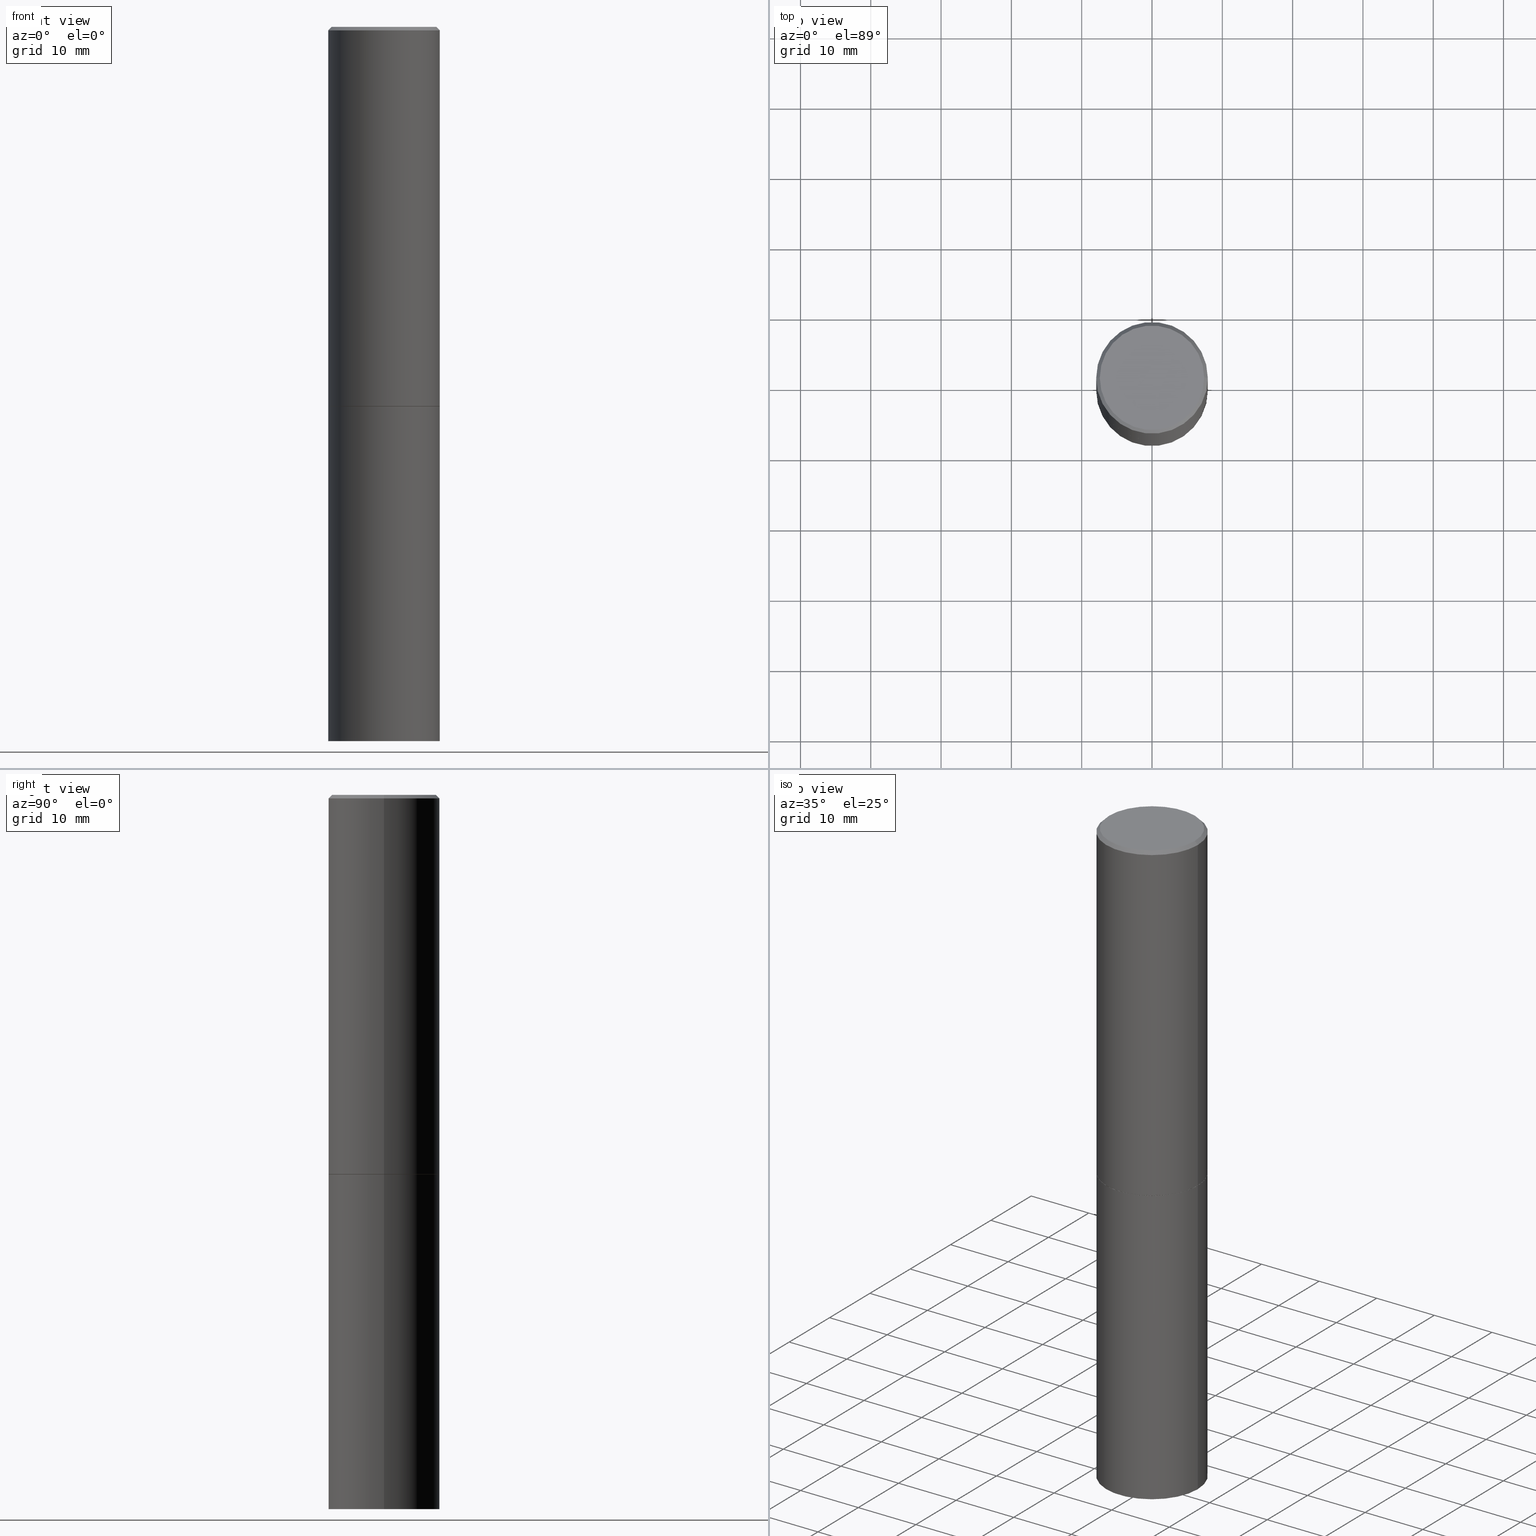
[diagram: canonical four-view strip — front | top / right | iso, engineering-drawing reading convention]
A machine part, canonical four-view strip (front | top / right | iso — engineering-drawing reading convention). The complete STEP part file that produces these views, byte-faithful:
ISO-10303-21;
HEADER;
FILE_DESCRIPTION (( 'STEP AP203' ),
    '1' );
FILE_NAME ('37563.STEP',
    '2024-02-27T22:13:36',
    ( '' ),
    ( '' ),
    'SwSTEP 2.0',
    'SolidWorks 2023',
    '' );
FILE_SCHEMA (( 'CONFIG_CONTROL_DESIGN' ));
ENDSEC;

DATA;
#1 = SHAPE_DEFINITION_REPRESENTATION ( #155, #196 ) ;
#2 = DIRECTION ( 'NONE',  ( -2.445468806185136597E-29, 3.491481338843145583E-15, 1.000000000000000000 ) ) ;
#3 = CARTESIAN_POINT ( 'NONE',  ( -0.3125000000000000000, 2.220446049250313081E-15, -1.537167215704658232E-29 ) ) ;
#4 = EDGE_CURVE ( 'NONE', #140, #62, #200, .T. ) ;
#5 = EDGE_CURVE ( 'NONE', #263, #297, #322, .T. ) ;
#6 = ORIENTED_EDGE ( 'NONE', *, *, #281, .T. ) ;
#7 =( NAMED_UNIT ( * ) PLANE_ANGLE_UNIT ( ) SI_UNIT ( $, .RADIAN. ) );
#8 = ORIENTED_EDGE ( 'NONE', *, *, #171, .F. ) ;
#9 = APPROVAL_DATE_TIME ( #242, #126 ) ;
#10 = AXIS2_PLACEMENT_3D ( 'NONE', #300, #301, #190 ) ;
#11 = AXIS2_PLACEMENT_3D ( 'NONE', #26, #224, #254 ) ;
#12 = ORIENTED_EDGE ( 'NONE', *, *, #4, .F. ) ;
#13 = ORIENTED_EDGE ( 'NONE', *, *, #22, .F. ) ;
#14 = VERTEX_POINT ( 'NONE', #268 ) ;
#15 = APPROVAL_STATUS ( 'not_yet_approved' ) ;
#16 = AXIS2_PLACEMENT_3D ( 'NONE', #257, #309, #91 ) ;
#17 = DIRECTION ( 'NONE',  ( -2.445468806185136597E-29, 3.491481338843145583E-15, 1.000000000000000000 ) ) ;
#18 = PLANE ( 'NONE',  #298 ) ;
#19 = ADVANCED_FACE ( 'NONE', ( #238 ), #105, .T. ) ;
#20 = CC_DESIGN_SECURITY_CLASSIFICATION ( #78, ( #82 ) ) ;
#21 = CARTESIAN_POINT ( 'NONE',  ( 0.3114999999999999991, -9.594590719140955956E-15, -2.124999999999999556 ) ) ;
#22 = EDGE_CURVE ( 'NONE', #116, #140, #72, .T. ) ;
#23 = LINE ( 'NONE', #131, #129 ) ;
#24 = DIRECTION ( 'NONE',  ( 1.000000000000000000, -6.982962677686266711E-15, 4.876176775795936353E-29 ) ) ;
#25 = FACE_OUTER_BOUND ( 'NONE', #118, .T. ) ;
#26 = CARTESIAN_POINT ( 'NONE',  ( 5.196621213143414147E-29, -7.419397845041682046E-15, -2.124999999999999556 ) ) ;
#27 = DIRECTION ( 'NONE',  ( -1.000000000000000000, 6.982962677686265922E-15, -4.876176775795935793E-29 ) ) ;
#28 = CC_DESIGN_PERSON_AND_ORGANIZATION_ASSIGNMENT ( #232, #178, ( #182 ) ) ;
#29 = DIRECTION ( 'NONE',  ( -2.445468806185136597E-29, 3.491481338843145583E-15, 1.000000000000000000 ) ) ;
#30 = DIRECTION ( 'NONE',  ( -2.445468806185136597E-29, 3.491481338843145583E-15, 1.000000000000000000 ) ) ;
#31 = CARTESIAN_POINT ( 'NONE',  ( 5.194175744337229665E-29, -7.415906363702840616E-15, -2.123999999999999666 ) ) ;
#32 = DIRECTION ( 'NONE',  ( -2.445468806185136877E-29, 3.491481338843145188E-15, 1.000000000000000000 ) ) ;
#33 = AXIS2_PLACEMENT_3D ( 'NONE', #239, #215, #147 ) ;
#34 = PERSON_AND_ORGANIZATION_ROLE ( 'creator' ) ;
#35 = ORIENTED_EDGE ( 'NONE', *, *, #56, .T. ) ;
#36 = DIRECTION ( 'NONE',  ( 1.000000000000000000, 0.000000000000000000, 0.000000000000000000 ) ) ;
#37 = ORIENTED_EDGE ( 'NONE', *, *, #237, .F. ) ;
#38 = APPROVAL_ROLE ( '' ) ;
#39 = DATE_AND_TIME ( #295, #184 ) ;
#40 = ORIENTED_EDGE ( 'NONE', *, *, #225, .T. ) ;
#41 = DIRECTION ( 'NONE',  ( -2.445468806185136597E-29, 3.491481338843145583E-15, 1.000000000000000000 ) ) ;
#42 = AXIS2_PLACEMENT_3D ( 'NONE', #166, #2, #340 ) ;
#43 = CARTESIAN_POINT ( 'NONE',  ( -0.3125000000000000000, -8.472215550956819896E-15, -4.000000000000000000 ) ) ;
#44 = DIRECTION ( 'NONE',  ( 1.000000000000000000, -6.982962677686265133E-15, 0.000000000000000000 ) ) ;
#45 = DIRECTION ( 'NONE',  ( -0.7071067811865465735, 2.468850131082246805E-15, -0.7071067811865484609 ) ) ;
#46 = AXIS2_PLACEMENT_3D ( 'NONE', #47, #213, #351 ) ;
#47 = CARTESIAN_POINT ( 'NONE',  ( 9.781875224740546387E-29, -1.396592535537258233E-14, -4.000000000000000000 ) ) ;
#48 = FACE_OUTER_BOUND ( 'NONE', #204, .T. ) ;
#49 = FACE_OUTER_BOUND ( 'NONE', #143, .T. ) ;
#50 = CC_DESIGN_PERSON_AND_ORGANIZATION_ASSIGNMENT ( #317, #315, ( #244 ) ) ;
#51 = DIRECTION ( 'NONE',  ( 2.438088387897960049E-29, -3.491481338843145188E-15, -1.000000000000000000 ) ) ;
#52 = CONICAL_SURFACE ( 'NONE', #42, 0.3114999999999999991, 0.7853981633974141952 ) ;
#53 = CARTESIAN_POINT ( 'NONE',  ( 2.042516583223231356E-15, 0.2924999999999997602, -1.019124035366569212E-15 ) ) ;
#54 = DIRECTION ( 'NONE',  ( 1.000000000000000000, -6.982962677686265133E-15, 0.000000000000000000 ) ) ;
#55 = DIRECTION ( 'NONE',  ( -2.445468806185136597E-29, 3.491481338843145583E-15, 1.000000000000000000 ) ) ;
#56 = EDGE_CURVE ( 'NONE', #347, #297, #217, .T. ) ;
#57 = CARTESIAN_POINT ( 'NONE',  ( -0.2924999999999997602, 2.077431396611662611E-15, 4.268512490086005323E-18 ) ) ;
#58 = LINE ( 'NONE', #191, #115 ) ;
#59 = APPROVAL_ROLE ( '' ) ;
#60 = AXIS2_PLACEMENT_3D ( 'NONE', #342, #306, #157 ) ;
#61 = APPROVAL_STATUS ( 'not_yet_approved' ) ;
#62 = VERTEX_POINT ( 'NONE', #353 ) ;
#63 = COORDINATED_UNIVERSAL_TIME_OFFSET ( 5, 0, .BEHIND. ) ;
#64 = EDGE_LOOP ( 'NONE', ( #121, #255 ) ) ;
#65 = DATE_TIME_ROLE ( 'classification_date' ) ;
#66 = ORIENTED_EDGE ( 'NONE', *, *, #305, .T. ) ;
#67 = VERTEX_POINT ( 'NONE', #43 ) ;
#68 = VERTEX_POINT ( 'NONE', #127 ) ;
#69 = CARTESIAN_POINT ( 'NONE',  ( -0.3124999999999998335, 2.112346210000093866E-15, -0.02000000000000007674 ) ) ;
#70 = VECTOR ( 'NONE', #274, 39.37007874015748854 ) ;
#71 = LINE ( 'NONE', #150, #284 ) ;
#72 = LINE ( 'NONE', #331, #302 ) ;
#73 = FACE_OUTER_BOUND ( 'NONE', #228, .T. ) ;
#74 =( CONVERSION_BASED_UNIT ( 'INCH', #334 ) LENGTH_UNIT ( ) NAMED_UNIT ( #159 ) );
#75 = DIRECTION ( 'NONE',  ( 1.000000000000000000, -6.982962677686265133E-15, 0.000000000000000000 ) ) ;
#76 = AXIS2_PLACEMENT_3D ( 'NONE', #272, #360, #103 ) ;
#77 = ADVANCED_FACE ( 'NONE', ( #73 ), #264, .T. ) ;
#78 = SECURITY_CLASSIFICATION ( '', '', #354 ) ;
#79 = DIRECTION ( 'NONE',  ( 2.438088387897960049E-29, -3.491481338843145188E-15, -1.000000000000000000 ) ) ;
#80 = EDGE_CURVE ( 'NONE', #116, #321, #110, .T. ) ;
#81 = CARTESIAN_POINT ( 'NONE',  ( -0.3114999999999999991, -5.200758768800747571E-15, -2.124999999999999556 ) ) ;
#82 = PRODUCT_DEFINITION_FORMATION_WITH_SPECIFIED_SOURCE ( 'ANY', '', #244, .NOT_KNOWN. ) ;
#83 = ORIENTED_EDGE ( 'NONE', *, *, #307, .T. ) ;
#84 = MANIFOLD_SOLID_BREP ( 'Body-Move/Copy2[1]', #271 ) ;
#85 = ADVANCED_FACE ( 'NONE', ( #187 ), #151, .T. ) ;
#86 = APPLICATION_PROTOCOL_DEFINITION ( 'international standard', 'config_control_design', 1994, #133 ) ;
#87 = ORIENTED_EDGE ( 'NONE', *, *, #22, .T. ) ;
#88 = PERSON ( 'UNSPECIFIED', 'UNSPECIFIED', 'UNSPECIFIED', ('UNSPECIFIED'), ('UNSPECIFIED'), ('UNSPECIFIED') ) ;
#89 = ORIENTED_EDGE ( 'NONE', *, *, #104, .T. ) ;
#90 = DATE_AND_TIME ( #119, #234 ) ;
#91 = DIRECTION ( 'NONE',  ( -1.000000000000000000, 6.982962677686265922E-15, -4.876176775795935793E-29 ) ) ;
#92 = ORIENTED_EDGE ( 'NONE', *, *, #358, .F. ) ;
#93 = AXIS2_PLACEMENT_3D ( 'NONE', #359, #97, #99 ) ;
#94 = AXIS2_PLACEMENT_3D ( 'NONE', #53, #79, #108 ) ;
#95 = ORIENTED_EDGE ( 'NONE', *, *, #358, .T. ) ;
#96 = MANIFOLD_SOLID_BREP ( 'Body-Move/Copy2[2]', #160 ) ;
#97 = DIRECTION ( 'NONE',  ( -2.445468806185136597E-29, 3.491481338843145583E-15, 1.000000000000000000 ) ) ;
#98 = PERSON_AND_ORGANIZATION ( #88, #194 ) ;
#99 = DIRECTION ( 'NONE',  ( 1.000000000000000000, -6.982962677686269077E-15, 0.000000000000000000 ) ) ;
#100 = APPROVAL ( #61, 'UNSPECIFIED' ) ;
#101 = CARTESIAN_POINT ( 'NONE',  ( -0.3114999999999999991, -5.206057223148969973E-15, -2.124999999999999556 ) ) ;
#102 = CALENDAR_DATE ( 2024, 27, 2 ) ;
#103 = DIRECTION ( 'NONE',  ( 1.000000000000000000, -6.982962677686266711E-15, 4.876176775795935232E-29 ) ) ;
#104 = EDGE_CURVE ( 'NONE', #293, #68, #291, .T. ) ;
#105 = CYLINDRICAL_SURFACE ( 'NONE', #211, 0.3125000000000000000 ) ;
#106 = ADVANCED_FACE ( 'NONE', ( #326 ), #189, .T. ) ;
#107 = AXIS2_PLACEMENT_3D ( 'NONE', #222, #55, #338 ) ;
#108 = DIRECTION ( 'NONE',  ( -1.000000000000000000, 6.982962677686265922E-15, -4.876176775795935793E-29 ) ) ;
#109 = FACE_OUTER_BOUND ( 'NONE', #114, .T. ) ;
#110 = CIRCLE ( 'NONE', #93, 0.3114999999999999991 ) ;
#111 = CC_DESIGN_APPROVAL ( #126, ( #78 ) ) ;
#112 = PERSON_AND_ORGANIZATION ( #88, #194 ) ;
#113 = PLANE ( 'NONE',  #310 ) ;
#114 = EDGE_LOOP ( 'NONE', ( #346, #95, #316, #260 ) ) ;
#115 = VECTOR ( 'NONE', #32, 39.37007874015748143 ) ;
#116 = VERTEX_POINT ( 'NONE', #21 ) ;
#117 =( NAMED_UNIT ( * ) SI_UNIT ( $, .STERADIAN. ) SOLID_ANGLE_UNIT ( ) );
#118 = EDGE_LOOP ( 'NONE', ( #325, #174, #179, #233 ) ) ;
#119 = CALENDAR_DATE ( 2024, 27, 2 ) ;
#120 = ORIENTED_EDGE ( 'NONE', *, *, #171, .T. ) ;
#121 = ORIENTED_EDGE ( 'NONE', *, *, #276, .T. ) ;
#122 = AXIS2_PLACEMENT_3D ( 'NONE', #313, #30, #75 ) ;
#123 = LINE ( 'NONE', #101, #70 ) ;
#124 = CALENDAR_DATE ( 2024, 27, 2 ) ;
#125 = DIRECTION ( 'NONE',  ( -2.445468806185136597E-29, 3.491481338843145583E-15, 1.000000000000000000 ) ) ;
#126 = APPROVAL ( #15, 'UNSPECIFIED' ) ;
#127 = CARTESIAN_POINT ( 'NONE',  ( 0.3125000000000000000, -9.601573681818640393E-15, -2.124999999999999556 ) ) ;
#128 = AXIS2_PLACEMENT_3D ( 'NONE', #183, #41, #44 ) ;
#129 = VECTOR ( 'NONE', #209, 39.37007874015748143 ) ;
#130 = DIRECTION ( 'NONE',  ( 1.000000000000000000, -6.982962677686269077E-15, 0.000000000000000000 ) ) ;
#131 = CARTESIAN_POINT ( 'NONE',  ( 0.3125000000000000000, -2.182175836776958347E-15, 1.523805242436230075E-29 ) ) ;
#132 = DIRECTION ( 'NONE',  ( 2.445468806185136597E-29, -3.491481338843145583E-15, -1.000000000000000000 ) ) ;
#133 = APPLICATION_CONTEXT ( 'configuration controlled 3d designs of mechanical parts and assemblies' ) ;
#134 = AXIS2_PLACEMENT_3D ( 'NONE', #149, #17, #329 ) ;
#135 = CYLINDRICAL_SURFACE ( 'NONE', #142, 0.3125000000000000000 ) ;
#136 = CARTESIAN_POINT ( 'NONE',  ( -0.3124999999999998890, 2.220446049250312292E-15, -1.537167215704657391E-29 ) ) ;
#137 = CIRCLE ( 'NONE', #46, 0.3125000000000000000 ) ;
#138 = VECTOR ( 'NONE', #308, 39.37007874015748143 ) ;
#139 = PERSON_AND_ORGANIZATION ( #88, #194 ) ;
#140 = VERTEX_POINT ( 'NONE', #188 ) ;
#141 = ORIENTED_EDGE ( 'NONE', *, *, #307, .F. ) ;
#142 = AXIS2_PLACEMENT_3D ( 'NONE', #156, #29, #24 ) ;
#143 = EDGE_LOOP ( 'NONE', ( #318, #8 ) ) ;
#144 = COORDINATED_UNIVERSAL_TIME_OFFSET ( 5, 0, .BEHIND. ) ;
#145 = APPROVAL_DATE_TIME ( #39, #208 ) ;
#146 = EDGE_LOOP ( 'NONE', ( #181, #141 ) ) ;
#147 = DIRECTION ( 'NONE',  ( -1.000000000000000000, 6.982962677686265133E-15, 0.000000000000000000 ) ) ;
#148 = EDGE_CURVE ( 'NONE', #14, #67, #137, .T. ) ;
#149 = CARTESIAN_POINT ( 'NONE',  ( 9.781875224740546387E-29, -1.396592535537258233E-14, -4.000000000000000000 ) ) ;
#150 = CARTESIAN_POINT ( 'NONE',  ( 0.3124999999999998335, -2.213735251080465334E-15, -0.02000000000000007674 ) ) ;
#151 = CYLINDRICAL_SURFACE ( 'NONE', #76, 0.3124999999999998890 ) ;
#152 = AXIS2_PLACEMENT_3D ( 'NONE', #241, #236, #130 ) ;
#153 = CIRCLE ( 'NONE', #205, 0.2924999999999997602 ) ;
#154 = CARTESIAN_POINT ( 'NONE',  ( 0.2924999999999997602, -2.110215457714318353E-15, 4.268512490114932791E-18 ) ) ;
#155 = PRODUCT_DEFINITION_SHAPE ( 'NONE', 'NONE',  #182 ) ;
#156 = CARTESIAN_POINT ( 'NONE',  ( 0.000000000000000000, 0.000000000000000000, 0.000000000000000000 ) ) ;
#157 = DIRECTION ( 'NONE',  ( 1.000000000000000000, -6.982962677686266711E-15, 4.876067333457693400E-29 ) ) ;
#158 = DIRECTION ( 'NONE',  ( 1.000000000000000000, -6.982962677686266711E-15, 4.876067333457693400E-29 ) ) ;
#159 = DIMENSIONAL_EXPONENTS ( 1.000000000000000000, 0.000000000000000000, 0.000000000000000000, 0.000000000000000000, 0.000000000000000000, 0.000000000000000000, 0.000000000000000000 ) ;
#160 = CLOSED_SHELL ( 'NONE', ( #77, #85, #287, #106, #220, #320, #199, #250 ) ) ;
#161 = CIRCLE ( 'NONE', #11, 0.3114999999999999991 ) ;
#162 = DIRECTION ( 'NONE',  ( 1.000000000000000000, -6.982962677686265133E-15, 0.000000000000000000 ) ) ;
#163 = LINE ( 'NONE', #3, #138 ) ;
#164 = CYLINDRICAL_SURFACE ( 'NONE', #107, 0.3124999999999998890 ) ;
#165 = ORIENTED_EDGE ( 'NONE', *, *, #80, .T. ) ;
#166 = CARTESIAN_POINT ( 'NONE',  ( 5.196621213143414147E-29, -7.419397845041682046E-15, -2.124999999999999556 ) ) ;
#167 = CARTESIAN_POINT ( 'NONE',  ( -1.043851414335219820E-46, 1.490343170380447200E-32, 4.268512490100411279E-18 ) ) ;
#168 = APPROVAL_DATE_TIME ( #90, #100 ) ;
#169 = CONICAL_SURFACE ( 'NONE', #364, 0.3124999999999998335, 0.7853981633974469467 ) ;
#170 = COORDINATED_UNIVERSAL_TIME_OFFSET ( 5, 0, .BEHIND. ) ;
#171 = EDGE_CURVE ( 'NONE', #67, #14, #223, .T. ) ;
#172 = ORIENTED_EDGE ( 'NONE', *, *, #197, .F. ) ;
#173 = APPLICATION_PROTOCOL_DEFINITION ( 'international standard', 'config_control_design', 1994, #275 ) ;
#174 = ORIENTED_EDGE ( 'NONE', *, *, #197, .T. ) ;
#175 = LOCAL_TIME ( 17, 13, 36.00000000000000000, #144 ) ;
#176 = VERTEX_POINT ( 'NONE', #154 ) ;
#177 = EDGE_CURVE ( 'NONE', #321, #62, #123, .T. ) ;
#178 = PERSON_AND_ORGANIZATION_ROLE ( 'creator' ) ;
#179 = ORIENTED_EDGE ( 'NONE', *, *, #5, .T. ) ;
#180 = PERSON_AND_ORGANIZATION_ROLE ( 'design_supplier' ) ;
#181 = ORIENTED_EDGE ( 'NONE', *, *, #80, .F. ) ;
#182 = PRODUCT_DEFINITION ( 'UNKNOWN', '', #82, #336 ) ;
#183 = CARTESIAN_POINT ( 'NONE',  ( 5.196621213143414147E-29, -7.419397845041682046E-15, -2.124999999999999556 ) ) ;
#184 = LOCAL_TIME ( 17, 13, 36.00000000000000000, #170 ) ;
#185 = DIRECTION ( 'NONE',  ( 0.7071067811865465735, -7.319954787623252890E-15, -0.7071067811865484609 ) ) ;
#186 = EDGE_CURVE ( 'NONE', #14, #68, #23, .T. ) ;
#187 = FACE_OUTER_BOUND ( 'NONE', #262, .T. ) ;
#188 = CARTESIAN_POINT ( 'NONE',  ( 0.3125000000000000000, -9.598082200479797386E-15, -2.123999999999999666 ) ) ;
#189 = CONICAL_SURFACE ( 'NONE', #33, 0.3124999999999998335, 0.7853981633974469467 ) ;
#190 = DIRECTION ( 'NONE',  ( 1.000000000000000000, -6.982962677686265133E-15, 0.000000000000000000 ) ) ;
#191 = CARTESIAN_POINT ( 'NONE',  ( 0.3124999999999998890, -2.182175836776957558E-15, 1.523805242436229235E-29 ) ) ;
#192 = CC_DESIGN_PERSON_AND_ORGANIZATION_ASSIGNMENT ( #98, #357, ( #78 ) ) ;
#193 = DIRECTION ( 'NONE',  ( 1.000000000000000000, -6.982962677686265922E-15, 4.876176775795935793E-29 ) ) ;
#194 = ORGANIZATION ( 'UNSPECIFIED', 'UNSPECIFIED', '' ) ;
#195 = CARTESIAN_POINT ( 'NONE',  ( 0.3124999999999998335, -2.213735251080465334E-15, -0.02000000000000007674 ) ) ;
#196 = ADVANCED_BREP_SHAPE_REPRESENTATION ( '37563', ( #84, #96, #304 ), #355 ) ;
#197 = EDGE_CURVE ( 'NONE', #176, #263, #71, .T. ) ;
#198 = DATE_TIME_ROLE ( 'creation_date' ) ;
#199 = ADVANCED_FACE ( 'NONE', ( #269 ), #18, .F. ) ;
#200 = CIRCLE ( 'NONE', #10, 0.3125000000000000000 ) ;
#201 = APPROVAL_PERSON_ORGANIZATION ( #345, #100, #323 ) ;
#202 = ORIENTED_EDGE ( 'NONE', *, *, #104, .F. ) ;
#203 = ORIENTED_EDGE ( 'NONE', *, *, #4, .T. ) ;
#204 = EDGE_LOOP ( 'NONE', ( #231, #120, #349, #202 ) ) ;
#205 = AXIS2_PLACEMENT_3D ( 'NONE', #167, #363, #158 ) ;
#206 = ORIENTED_EDGE ( 'NONE', *, *, #177, .F. ) ;
#207 = EDGE_LOOP ( 'NONE', ( #206, #83, #87, #92 ) ) ;
#208 = APPROVAL ( #285, 'UNSPECIFIED' ) ;
#209 = DIRECTION ( 'NONE',  ( -2.445468806185136877E-29, 3.491481338843145188E-15, 1.000000000000000000 ) ) ;
#210 = COORDINATED_UNIVERSAL_TIME_OFFSET ( 5, 0, .BEHIND. ) ;
#211 = AXIS2_PLACEMENT_3D ( 'NONE', #330, #332, #267 ) ;
#212 = DIRECTION ( 'NONE',  ( 1.000000000000000000, -6.982962677686265133E-15, 0.000000000000000000 ) ) ;
#213 = DIRECTION ( 'NONE',  ( -2.445468806185136597E-29, 3.491481338843145583E-15, 1.000000000000000000 ) ) ;
#214 = DATE_AND_TIME ( #102, #292 ) ;
#215 = DIRECTION ( 'NONE',  ( 2.445468806185136597E-29, -3.491481338843145583E-15, -1.000000000000000000 ) ) ;
#216 = DIRECTION ( 'NONE',  ( -2.445468806185136597E-29, 3.491481338843145583E-15, 1.000000000000000000 ) ) ;
#217 = LINE ( 'NONE', #69, #252 ) ;
#218 = CIRCLE ( 'NONE', #328, 0.3125000000000000000 ) ;
#219 = LINE ( 'NONE', #136, #247 ) ;
#220 = ADVANCED_FACE ( 'NONE', ( #109 ), #164, .T. ) ;
#221 = FACE_OUTER_BOUND ( 'NONE', #207, .T. ) ;
#222 = CARTESIAN_POINT ( 'NONE',  ( 0.000000000000000000, 0.000000000000000000, 0.000000000000000000 ) ) ;
#223 = CIRCLE ( 'NONE', #134, 0.3125000000000000000 ) ;
#224 = DIRECTION ( 'NONE',  ( -2.445468806185136597E-29, 3.491481338843145583E-15, 1.000000000000000000 ) ) ;
#225 = EDGE_CURVE ( 'NONE', #297, #263, #279, .T. ) ;
#226 = MECHANICAL_CONTEXT ( 'NONE', #133, 'mechanical' ) ;
#227 = CC_DESIGN_PERSON_AND_ORGANIZATION_ASSIGNMENT ( #139, #180, ( #82 ) ) ;
#228 = EDGE_LOOP ( 'NONE', ( #165, #303, #12, #13 ) ) ;
#229 = CC_DESIGN_APPROVAL ( #208, ( #82 ) ) ;
#230 = ORIENTED_EDGE ( 'NONE', *, *, #148, .T. ) ;
#231 = ORIENTED_EDGE ( 'NONE', *, *, #251, .F. ) ;
#232 = PERSON_AND_ORGANIZATION ( #88, #194 ) ;
#233 = ORIENTED_EDGE ( 'NONE', *, *, #56, .F. ) ;
#234 = LOCAL_TIME ( 17, 13, 36.00000000000000000, #261 ) ;
#235 = EDGE_LOOP ( 'NONE', ( #172, #290, #35, #40 ) ) ;
#236 = DIRECTION ( 'NONE',  ( -2.445468806185136597E-29, 3.491481338843145583E-15, 1.000000000000000000 ) ) ;
#237 = EDGE_CURVE ( 'NONE', #140, #263, #58, .T. ) ;
#238 = FACE_OUTER_BOUND ( 'NONE', #350, .T. ) ;
#239 = CARTESIAN_POINT ( 'NONE',  ( 4.890937612370292426E-31, -6.982962677686317493E-17, -0.02000000000000007674 ) ) ;
#240 = LOCAL_TIME ( 17, 13, 36.00000000000000000, #63 ) ;
#241 = CARTESIAN_POINT ( 'NONE',  ( 5.196621213143414147E-29, -7.419397845041682046E-15, -2.124999999999999556 ) ) ;
#242 = DATE_AND_TIME ( #124, #175 ) ;
#243 = DIRECTION ( 'NONE',  ( 0.7071067811865232589, -2.468850131082003836E-15, 0.7071067811865715536 ) ) ;
#244 = PRODUCT ( '37563', '37563', '', ( #226 ) ) ;
#245 = AXIS2_PLACEMENT_3D ( 'NONE', #299, #125, #212 ) ;
#246 = EDGE_CURVE ( 'NONE', #176, #347, #153, .T. ) ;
#247 = VECTOR ( 'NONE', #277, 39.37007874015748143 ) ;
#248 = CC_DESIGN_APPROVAL ( #100, ( #182 ) ) ;
#249 = FACE_OUTER_BOUND ( 'NONE', #296, .T. ) ;
#250 = ADVANCED_FACE ( 'NONE', ( #283 ), #337, .F. ) ;
#251 = EDGE_CURVE ( 'NONE', #67, #293, #163, .T. ) ;
#252 = VECTOR ( 'NONE', #45, 39.37007874015748143 ) ;
#253 = CIRCLE ( 'NONE', #60, 0.2924999999999997602 ) ;
#254 = DIRECTION ( 'NONE',  ( 1.000000000000000000, -6.982962677686269077E-15, 0.000000000000000000 ) ) ;
#255 = ORIENTED_EDGE ( 'NONE', *, *, #246, .T. ) ;
#256 = ORIENTED_EDGE ( 'NONE', *, *, #251, .T. ) ;
#257 = CARTESIAN_POINT ( 'NONE',  ( 2.182175836777010017E-15, 0.3124999999999925615, -2.125000000000000888 ) ) ;
#258 = CC_DESIGN_PERSON_AND_ORGANIZATION_ASSIGNMENT ( #112, #34, ( #82 ) ) ;
#259 = CIRCLE ( 'NONE', #266, 0.3125000000000000000 ) ;
#260 = ORIENTED_EDGE ( 'NONE', *, *, #225, .F. ) ;
#261 = COORDINATED_UNIVERSAL_TIME_OFFSET ( 5, 0, .BEHIND. ) ;
#262 = EDGE_LOOP ( 'NONE', ( #203, #6, #288, #37 ) ) ;
#263 = VERTEX_POINT ( 'NONE', #195 ) ;
#264 = CONICAL_SURFACE ( 'NONE', #152, 0.3114999999999999991, 0.7853981633974141952 ) ;
#265 = ADVANCED_FACE ( 'NONE', ( #49 ), #113, .T. ) ;
#266 = AXIS2_PLACEMENT_3D ( 'NONE', #31, #216, #162 ) ;
#267 = DIRECTION ( 'NONE',  ( 1.000000000000000000, -6.982962677686266711E-15, 4.876176775795936353E-29 ) ) ;
#268 = CARTESIAN_POINT ( 'NONE',  ( 0.3125000000000000000, -1.614810119214954068E-14, -4.000000000000000000 ) ) ;
#269 = FACE_OUTER_BOUND ( 'NONE', #146, .T. ) ;
#270 = PERSON_AND_ORGANIZATION ( #88, #194 ) ;
#271 = CLOSED_SHELL ( 'NONE', ( #19, #265, #294, #365 ) ) ;
#272 = CARTESIAN_POINT ( 'NONE',  ( 0.000000000000000000, 0.000000000000000000, 0.000000000000000000 ) ) ;
#273 = APPROVAL_PERSON_ORGANIZATION ( #348, #208, #59 ) ;
#274 = DIRECTION ( 'NONE',  ( -0.7071067811865232589, 7.493145998870265808E-15, 0.7071067811865715536 ) ) ;
#275 = APPLICATION_CONTEXT ( 'configuration controlled 3d designs of mechanical parts and assemblies' ) ;
#276 = EDGE_CURVE ( 'NONE', #347, #176, #253, .T. ) ;
#277 = DIRECTION ( 'NONE',  ( -2.445468806185136877E-29, 3.491481338843145188E-15, 1.000000000000000000 ) ) ;
#278 = CARTESIAN_POINT ( 'NONE',  ( 4.890937612370292426E-31, -6.982962677686317493E-17, -0.02000000000000007674 ) ) ;
#279 = CIRCLE ( 'NONE', #122, 0.3124999999999998335 ) ;
#280 = CARTESIAN_POINT ( 'NONE',  ( -0.3125000000000000000, -8.472215550956819896E-15, -2.124999999999999556 ) ) ;
#281 = EDGE_CURVE ( 'NONE', #62, #297, #219, .T. ) ;
#282 = PRODUCT_RELATED_PRODUCT_CATEGORY ( 'detail', '', ( #244 ) ) ;
#283 = FACE_OUTER_BOUND ( 'NONE', #64, .T. ) ;
#284 = VECTOR ( 'NONE', #185, 39.37007874015748143 ) ;
#285 = APPROVAL_STATUS ( 'not_yet_approved' ) ;
#286 = CARTESIAN_POINT ( 'NONE',  ( 5.196621213143414147E-29, -7.419397845041682046E-15, -2.124999999999999556 ) ) ;
#287 = ADVANCED_FACE ( 'NONE', ( #25 ), #169, .T. ) ;
#288 = ORIENTED_EDGE ( 'NONE', *, *, #5, .F. ) ;
#289 = DATE_AND_TIME ( #343, #240 ) ;
#290 = ORIENTED_EDGE ( 'NONE', *, *, #276, .F. ) ;
#291 = CIRCLE ( 'NONE', #128, 0.3125000000000000000 ) ;
#292 = LOCAL_TIME ( 17, 13, 36.00000000000000000, #210 ) ;
#293 = VERTEX_POINT ( 'NONE', #280 ) ;
#294 = ADVANCED_FACE ( 'NONE', ( #249 ), #366, .F. ) ;
#295 = CALENDAR_DATE ( 2024, 27, 2 ) ;
#296 = EDGE_LOOP ( 'NONE', ( #66, #89 ) ) ;
#297 = VERTEX_POINT ( 'NONE', #352 ) ;
#298 = AXIS2_PLACEMENT_3D ( 'NONE', #356, #341, #193 ) ;
#299 = CARTESIAN_POINT ( 'NONE',  ( 4.890937612370292426E-31, -6.982962677686317493E-17, -0.02000000000000007674 ) ) ;
#300 = CARTESIAN_POINT ( 'NONE',  ( 5.194175744337229665E-29, -7.415906363702840616E-15, -2.123999999999999666 ) ) ;
#301 = DIRECTION ( 'NONE',  ( -2.445468806185136597E-29, 3.491481338843145583E-15, 1.000000000000000000 ) ) ;
#302 = VECTOR ( 'NONE', #243, 39.37007874015748854 ) ;
#303 = ORIENTED_EDGE ( 'NONE', *, *, #177, .T. ) ;
#304 = AXIS2_PLACEMENT_3D ( 'NONE', #319, #314, #36 ) ;
#305 = EDGE_CURVE ( 'NONE', #68, #293, #218, .T. ) ;
#306 = DIRECTION ( 'NONE',  ( -2.445468806185136597E-29, 3.491481338843145583E-15, 1.000000000000000000 ) ) ;
#307 = EDGE_CURVE ( 'NONE', #321, #116, #161, .T. ) ;
#308 = DIRECTION ( 'NONE',  ( -2.445468806185136877E-29, 3.491481338843145188E-15, 1.000000000000000000 ) ) ;
#309 = DIRECTION ( 'NONE',  ( 2.438088387897960049E-29, -3.491481338843145188E-15, -1.000000000000000000 ) ) ;
#310 = AXIS2_PLACEMENT_3D ( 'NONE', #312, #51, #27 ) ;
#311 = DIRECTION ( 'NONE',  ( -2.445468806185136597E-29, 3.491481338843145583E-15, 1.000000000000000000 ) ) ;
#312 = CARTESIAN_POINT ( 'NONE',  ( 2.182175836777055771E-15, 0.3124999999999860667, -4.000000000000000888 ) ) ;
#313 = CARTESIAN_POINT ( 'NONE',  ( 4.890937612370292426E-31, -6.982962677686317493E-17, -0.02000000000000007674 ) ) ;
#314 = DIRECTION ( 'NONE',  ( 0.000000000000000000, 0.000000000000000000, 1.000000000000000000 ) ) ;
#315 = PERSON_AND_ORGANIZATION_ROLE ( 'design_owner' ) ;
#316 = ORIENTED_EDGE ( 'NONE', *, *, #237, .T. ) ;
#317 = PERSON_AND_ORGANIZATION ( #88, #194 ) ;
#318 = ORIENTED_EDGE ( 'NONE', *, *, #148, .F. ) ;
#319 = CARTESIAN_POINT ( 'NONE',  ( 0.000000000000000000, 0.000000000000000000, 0.000000000000000000 ) ) ;
#320 = ADVANCED_FACE ( 'NONE', ( #221 ), #52, .T. ) ;
#321 = VERTEX_POINT ( 'NONE', #81 ) ;
#322 = CIRCLE ( 'NONE', #245, 0.3124999999999998335 ) ;
#323 = APPROVAL_ROLE ( '' ) ;
#324 = ORIENTED_EDGE ( 'NONE', *, *, #305, .F. ) ;
#325 = ORIENTED_EDGE ( 'NONE', *, *, #246, .F. ) ;
#326 = FACE_OUTER_BOUND ( 'NONE', #235, .T. ) ;
#327 = CC_DESIGN_DATE_AND_TIME_ASSIGNMENT ( #289, #198, ( #182 ) ) ;
#328 = AXIS2_PLACEMENT_3D ( 'NONE', #286, #311, #54 ) ;
#329 = DIRECTION ( 'NONE',  ( 1.000000000000000000, -6.982962677686269077E-15, 0.000000000000000000 ) ) ;
#330 = CARTESIAN_POINT ( 'NONE',  ( 0.000000000000000000, 0.000000000000000000, 0.000000000000000000 ) ) ;
#331 = CARTESIAN_POINT ( 'NONE',  ( 0.3114999999999999991, -9.594590719140955956E-15, -2.124999999999999556 ) ) ;
#332 = DIRECTION ( 'NONE',  ( -2.445468806185136597E-29, 3.491481338843145583E-15, 1.000000000000000000 ) ) ;
#333 = CC_DESIGN_DATE_AND_TIME_ASSIGNMENT ( #214, #65, ( #78 ) ) ;
#334 = LENGTH_MEASURE_WITH_UNIT ( LENGTH_MEASURE( 0.02539999999999999897 ), #361 );
#335 = DIRECTION ( 'NONE',  ( -1.000000000000000000, 6.982962677686265133E-15, 0.000000000000000000 ) ) ;
#336 = DESIGN_CONTEXT ( 'detailed design', #275, 'design' ) ;
#337 = PLANE ( 'NONE',  #94 ) ;
#338 = DIRECTION ( 'NONE',  ( 1.000000000000000000, -6.982962677686266711E-15, 4.876176775795935232E-29 ) ) ;
#339 = APPROVAL_PERSON_ORGANIZATION ( #270, #126, #38 ) ;
#340 = DIRECTION ( 'NONE',  ( 1.000000000000000000, -6.982962677686269077E-15, 0.000000000000000000 ) ) ;
#341 = DIRECTION ( 'NONE',  ( -2.438088387897960049E-29, 3.491481338843145188E-15, 1.000000000000000000 ) ) ;
#342 = CARTESIAN_POINT ( 'NONE',  ( -1.043851414335219820E-46, 1.490343170380447200E-32, 4.268512490100411279E-18 ) ) ;
#343 = CALENDAR_DATE ( 2024, 27, 2 ) ;
#344 = ORIENTED_EDGE ( 'NONE', *, *, #186, .F. ) ;
#345 = PERSON_AND_ORGANIZATION ( #88, #194 ) ;
#346 = ORIENTED_EDGE ( 'NONE', *, *, #281, .F. ) ;
#347 = VERTEX_POINT ( 'NONE', #57 ) ;
#348 = PERSON_AND_ORGANIZATION ( #88, #194 ) ;
#349 = ORIENTED_EDGE ( 'NONE', *, *, #186, .T. ) ;
#350 = EDGE_LOOP ( 'NONE', ( #230, #256, #324, #344 ) ) ;
#351 = DIRECTION ( 'NONE',  ( 1.000000000000000000, -6.982962677686269077E-15, 0.000000000000000000 ) ) ;
#352 = CARTESIAN_POINT ( 'NONE',  ( -0.3124999999999998335, 2.112346210000093866E-15, -0.02000000000000007674 ) ) ;
#353 = CARTESIAN_POINT ( 'NONE',  ( -0.3125000000000000000, -1.522421945989535918E-15, -2.123999999999999666 ) ) ;
#354 = SECURITY_CLASSIFICATION_LEVEL ( 'unclassified' ) ;
#355 =( GEOMETRIC_REPRESENTATION_CONTEXT ( 3 ) GLOBAL_UNCERTAINTY_ASSIGNED_CONTEXT ( ( #362 ) ) GLOBAL_UNIT_ASSIGNED_CONTEXT ( ( #74, #7, #117 ) ) REPRESENTATION_CONTEXT ( 'NONE', 'WORKASPACE' ) );
#356 = CARTESIAN_POINT ( 'NONE',  ( 5.196621213143414147E-29, -7.419397845041682046E-15, -2.124999999999999556 ) ) ;
#357 = PERSON_AND_ORGANIZATION_ROLE ( 'classification_officer' ) ;
#358 = EDGE_CURVE ( 'NONE', #62, #140, #259, .T. ) ;
#359 = CARTESIAN_POINT ( 'NONE',  ( 5.196621213143414147E-29, -7.419397845041682046E-15, -2.124999999999999556 ) ) ;
#360 = DIRECTION ( 'NONE',  ( -2.445468806185136597E-29, 3.491481338843145583E-15, 1.000000000000000000 ) ) ;
#361 =( LENGTH_UNIT ( ) NAMED_UNIT ( * ) SI_UNIT ( $, .METRE. ) );
#362 = UNCERTAINTY_MEASURE_WITH_UNIT (LENGTH_MEASURE( 1.000000000000000082E-05 ), #74, 'distance_accuracy_value', 'NONE');
#363 = DIRECTION ( 'NONE',  ( -2.445468806185136597E-29, 3.491481338843145583E-15, 1.000000000000000000 ) ) ;
#364 = AXIS2_PLACEMENT_3D ( 'NONE', #278, #132, #335 ) ;
#365 = ADVANCED_FACE ( 'NONE', ( #48 ), #135, .T. ) ;
#366 = PLANE ( 'NONE',  #16 ) ;
ENDSEC;
END-ISO-10303-21;
